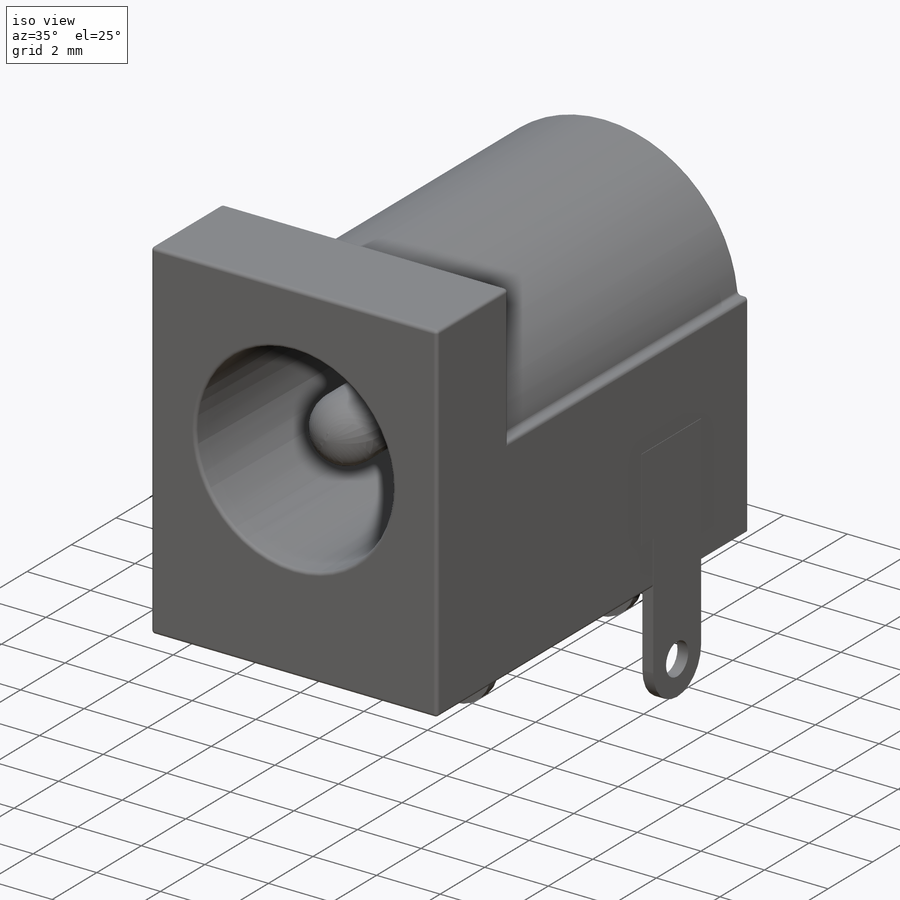
[diagram: iso view]
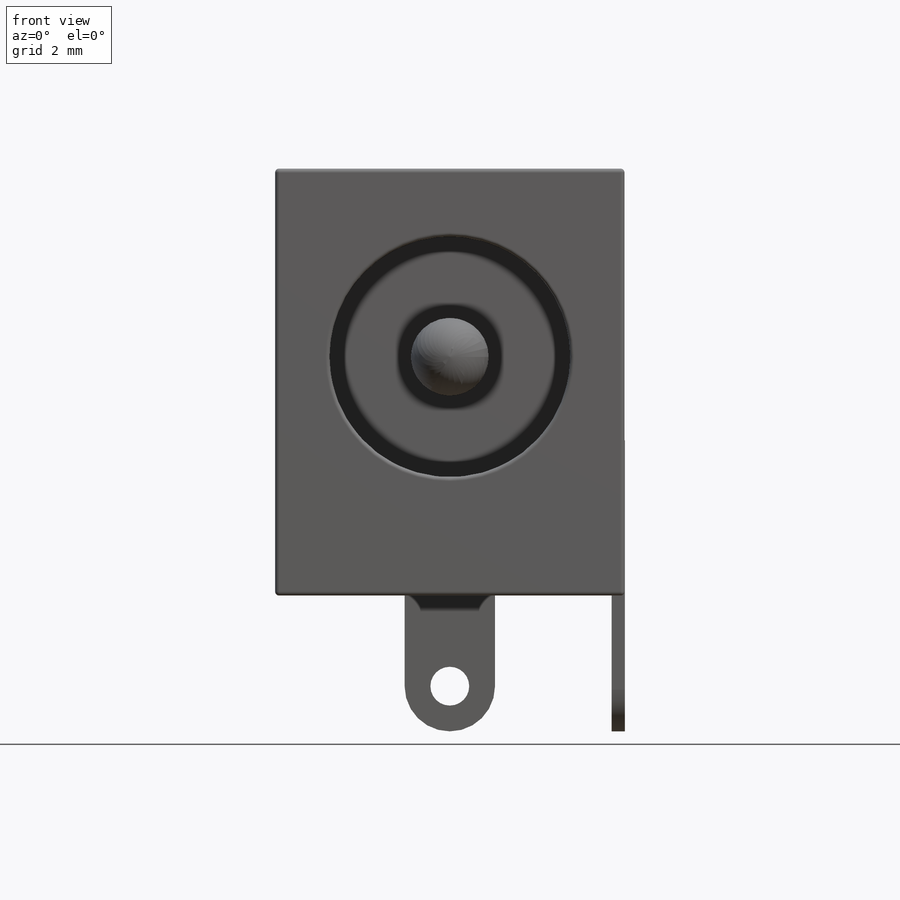
[diagram: front view]
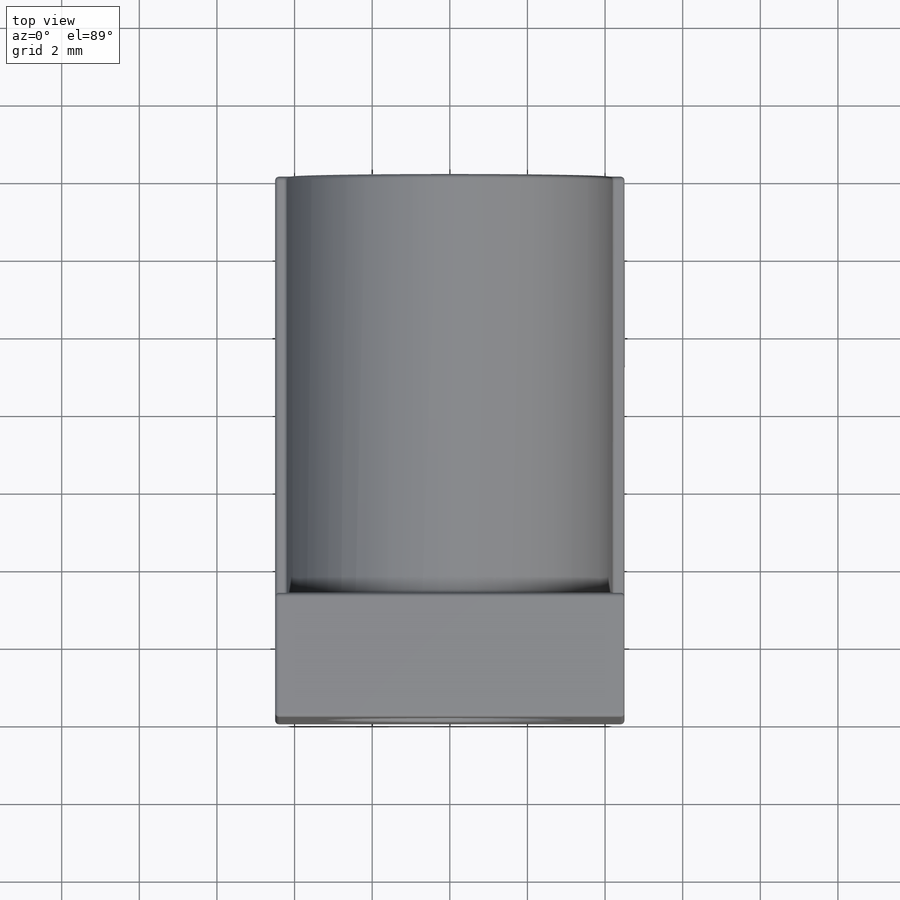
[diagram: top view]
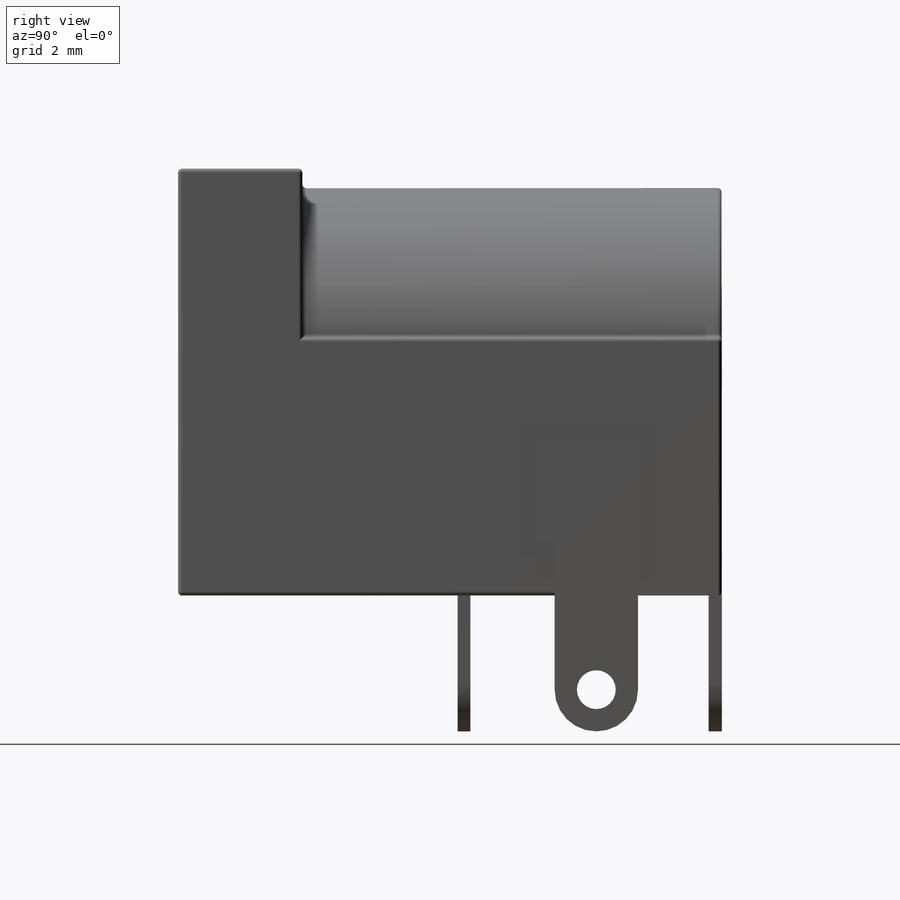
[diagram: right view]
SOLIDWORKS PART (.sldprt)
format: sldprt  version: not decoded by parser v0  size: 724,480 bytes
history: native  units: mm
features: sketch x7, extrude x6, fillet x2, material x1, cut_extrude x1, plane x1 (+13 scaffold rows collapsed)
feature tree (31):
  scaffold x13  (default folders/planes/origin — collapsed)
  material  "Material <not specified>"
  sketch  "Sketch1"  dims[c1.D3=~1.930562mm c1.D4=6.2mm c1.D1=~54.873246mm c1.D2=~37.801569mm c2.D1=9.0mm c2.D2=11.0mm c2.D3=4.85mm]
  extrude  "Boss-Extrude1"  Depth=14mm
  sketch  "Sketch2"  dims[c1.D1=0.5mm c1.D2=6.5mm c1.D3=0.3mm c2.D2=6.65mm c2.D4=0.3mm]
  cut_extrude  "Cut-Extrude1"  Depth=3.2mm
  sketch  "Sketch3"  dims[D1=~0.033176mm]
  extrude  "Boss-Extrude2"  Depth=1mm
  sketch  "Sketch4"  dims[D1=2.0mm]
  extrude  "Boss-Extrude3"  Depth=1.4mm
  fillet  "Fillet1"  Radius=1mm
  sketch  "Sketch5"  dims[c1.D1=1.0mm c1.D3=4.0mm c1.D7=0.15mm c2.D1=~2.03075mm c2.D2=2.33mm c2.D4=1.0mm c2.D5=2.335mm c2.D6=3.0mm]
  extrude  "Boss-Extrude4"  Depth=0.01mm
  sketch  "Sketch6"  dims[c1.D1=~0.527276mm c1.D6=1.0mm c2.D1=2.15mm c2.D2=2.15mm c2.D3=2.67mm c2.D4=2.6mm c2.D5=1.4mm]
  extrude  "Boss-Extrude5"  Depth=0.01mm
  plane  "Plane1"  Offset=6.8mm
  sketch  "Sketch8"  dims[D1=2.335mm]
  extrude  "Boss-Extrude6"  Depth=0.33mm
  fillet  "Fillet2"  Radius=0.1mm
decode coverage: 16 of 16 modeling features carry decoded parameters
note: ~ marks probable driven/reference dimensions
note: suppression state not decoded; provenance and decode notes live in map.json
